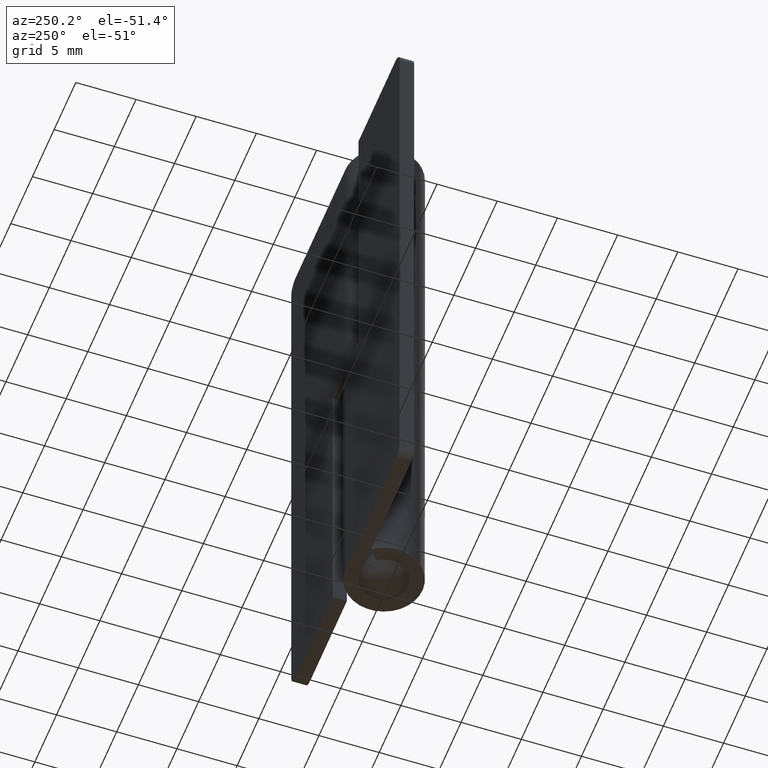
[diagram: clean part render]
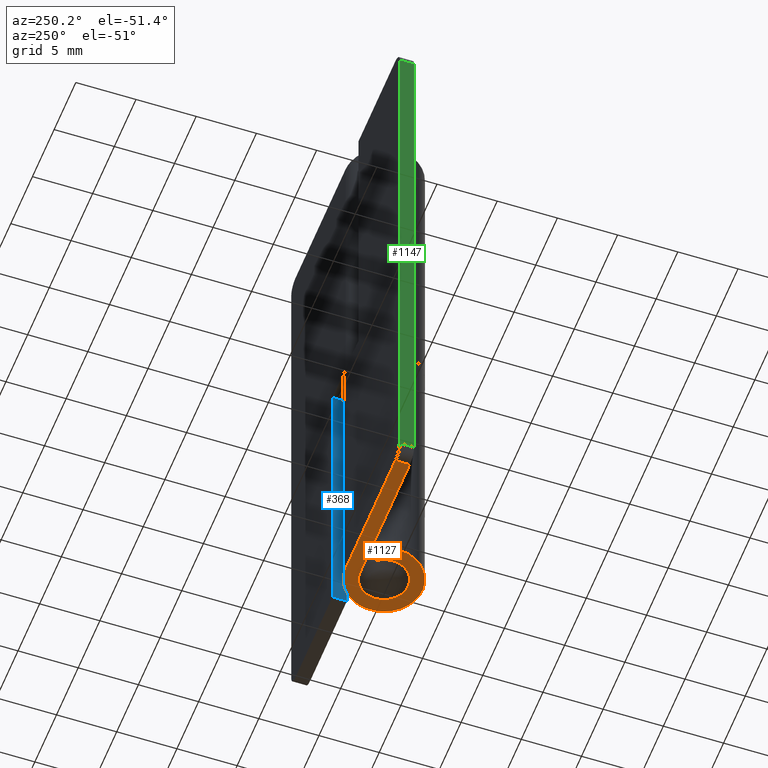
[diagram: same view with three faces highlighted in distinct colors, each labeled with its STEP entity id]
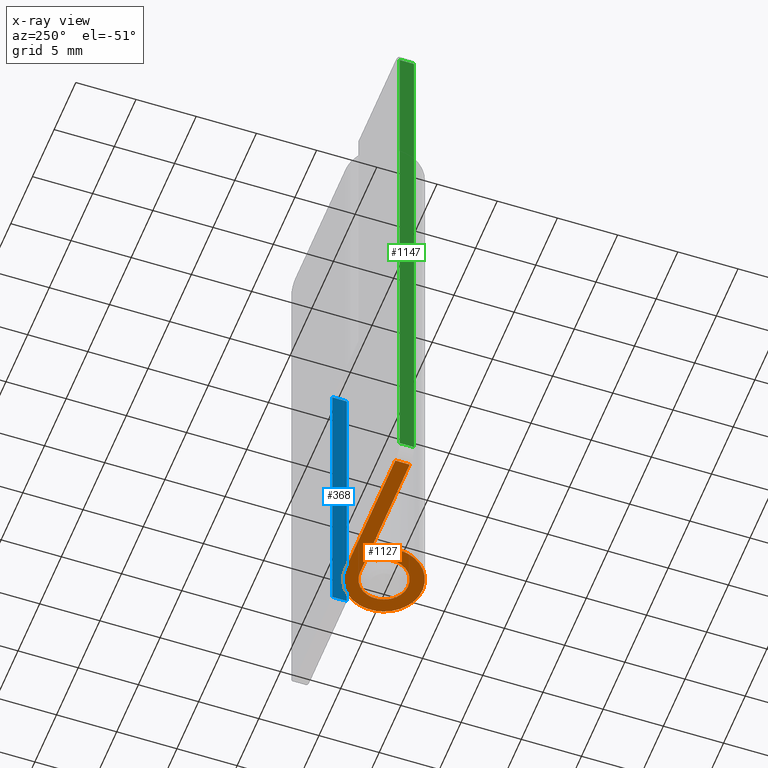
[diagram: x-ray of the same camera — body ghosted, the three highlighted faces saturated]
A machine part, auxiliary view with three faces highlighted in distinct colors.
The next image is the same camera in x-ray (body ghosted, the three faces saturated) — at least one of them is partly hidden behind the body in this view.
Their STEP definitions:

[orange] entity #1127 — the highlighted face is a freeform B-spline surface patch.
#1013=CARTESIAN_POINT('',(-11.500000000000000,2.0,0.0));
#1014=VERTEX_POINT('',#1013);
#1035=CARTESIAN_POINT('',(-11.500000000000000,3.200001000000000,0.0));
#1036=VERTEX_POINT('',#1035);
#1050=CARTESIAN_POINT('',(-11.500000000000000,3.200001000000000,0.0));
#1051=CARTESIAN_POINT('',(-11.500000000000000,2.0,0.0));
#1052=QUASI_UNIFORM_CURVE('',1,(#1050,#1051),.UNSPECIFIED.,.F.,.U.);
#1053=EDGE_CURVE('',#1036,#1014,#1052,.T.);
#1058=CARTESIAN_POINT('',(-12.234140306596320,-3.509200391226918,0.0));
#1059=CARTESIAN_POINT('',(3.931644906678645,-3.509200391226918,0.0));
#1060=CARTESIAN_POINT('',(-12.234140306596320,3.519182653470632,0.0));
#1061=CARTESIAN_POINT('',(3.931644906678645,3.519182653470632,0.0));
#1062=B_SPLINE_SURFACE_WITH_KNOTS('',1,1,((#1058,#1060),(#1059,#1061)),.UNSPECIFIED.,.F.,.F.,.U.,(2,2),(2,2),(0.0,16.165785213274969),(0.0,7.028383044697550),.UNSPECIFIED.);
#1063=CARTESIAN_POINT('',(-3.673819E-016,2.0,0.0));
#1064=VERTEX_POINT('',#1063);
#1065=CARTESIAN_POINT('',(-11.500000000000000,2.0,0.0));
#1066=CARTESIAN_POINT('',(-3.673819E-016,2.0,0.0));
#1067=QUASI_UNIFORM_CURVE('',1,(#1065,#1066),.UNSPECIFIED.,.F.,.U.);
#1068=EDGE_CURVE('',#1014,#1064,#1067,.T.);
#1069=ORIENTED_EDGE('',*,*,#1068,.F.);
#1070=ORIENTED_EDGE('',*,*,#1053,.F.);
#1071=CARTESIAN_POINT('',(-0.000000167551616,3.200000000000000,0.0));
#1072=VERTEX_POINT('',#1071);
#1073=CARTESIAN_POINT('',(-0.000000167551616,3.200000000000000,0.0));
#1074=CARTESIAN_POINT('',(-11.500000000000000,3.200001000000000,0.0));
#1075=QUASI_UNIFORM_CURVE('',1,(#1073,#1074),.UNSPECIFIED.,.F.,.U.);
#1076=EDGE_CURVE('',#1072,#1036,#1075,.T.);
#1077=ORIENTED_EDGE('',*,*,#1076,.F.);
#1078=CARTESIAN_POINT('',(-2.537222891273055,1.950000000000000,0.0));
#1079=VERTEX_POINT('',#1078);
#1080=CARTESIAN_POINT('',(-0.000000167551617,3.199999999999996,0.0));
#1081=CARTESIAN_POINT('',(2.540204880976625,3.200000133004827,0.0));
#1082=CARTESIAN_POINT('',(3.116546783299587,0.726041422719805,0.0));
#1083=CARTESIAN_POINT('',(3.692888685622549,-1.747917287565218,0.0));
#1084=CARTESIAN_POINT('',(1.414213637523662,-2.870539981857437,0.0));
#1085=CARTESIAN_POINT('',(-0.864461410575226,-3.993162676149657,0.0));
#1086=CARTESIAN_POINT('',(-2.474810876647591,-2.028622962708149,0.0));
#1087=CARTESIAN_POINT('',(-4.085160342719955,-0.064083249266642,0.0));
#1088=CARTESIAN_POINT('',(-2.537222891273056,1.949999999999998,0.0));
#1096=(BOUNDED_CURVE()B_SPLINE_CURVE(2,(#1080,#1081,#1082,#1083,#1084,#1085,#1086,#1087,#1088),.UNSPECIFIED.,.F.,.U.)B_SPLINE_CURVE_WITH_KNOTS((3,2,2,2,3),(0.0,0.250000000000000,0.500000000000000,0.750000000000000,1.0),.UNSPECIFIED.)CURVE()GEOMETRIC_REPRESENTATION_ITEM()RATIONAL_B_SPLINE_CURVE((1.0,0.783226625442968,1.0,0.783226625442968,1.0,0.783226625442968,1.0,0.783226625442968,1.0))REPRESENTATION_ITEM(''));
#1097=EDGE_CURVE('',#1072,#1079,#1096,.T.);
#1098=ORIENTED_EDGE('',*,*,#1097,.T.);
#1099=CARTESIAN_POINT('',(-1.585764307045660,1.218750000000000,0.0));
#1100=VERTEX_POINT('',#1099);
#1101=CARTESIAN_POINT('',(-1.585764307045660,1.218750000000000,0.0));
#1102=CARTESIAN_POINT('',(-2.537222891273055,1.950000000000000,0.0));
#1103=QUASI_UNIFORM_CURVE('',1,(#1101,#1102),.UNSPECIFIED.,.F.,.U.);
#1104=EDGE_CURVE('',#1100,#1079,#1103,.T.);
#1105=ORIENTED_EDGE('',*,*,#1104,.F.);
#1106=CARTESIAN_POINT('',(0.0,2.0,0.0));
#1107=CARTESIAN_POINT('',(1.587628133991659,2.000000000000000,0.0));
#1108=CARTESIAN_POINT('',(1.947841757381979,0.453775812708308,0.0));
#1109=CARTESIAN_POINT('',(2.308055380772298,-1.092448374583385,0.0));
#1110=CARTESIAN_POINT('',(0.883883476483185,-1.794087511800915,0.0));
#1111=CARTESIAN_POINT('',(-0.540288427805928,-2.495726649018445,0.0));
#1112=CARTESIAN_POINT('',(-1.546756814501377,-1.267889331445593,0.0));
#1113=CARTESIAN_POINT('',(-2.553225201196827,-0.040052013872740,0.0));
#1114=CARTESIAN_POINT('',(-1.585764307045660,1.218749999999999,0.0));
#1122=(BOUNDED_CURVE()B_SPLINE_CURVE(2,(#1106,#1107,#1108,#1109,#1110,#1111,#1112,#1113,#1114),.UNSPECIFIED.,.F.,.U.)B_SPLINE_CURVE_WITH_KNOTS((3,2,2,2,3),(0.0,0.250000000000000,0.500000000000000,0.750000000000000,1.0),.UNSPECIFIED.)CURVE()GEOMETRIC_REPRESENTATION_ITEM()RATIONAL_B_SPLINE_CURVE((1.0,0.783226629512223,1.0,0.783226629512223,1.0,0.783226629512223,1.0,0.783226629512223,1.0))REPRESENTATION_ITEM(''));
#1123=EDGE_CURVE('',#1064,#1100,#1122,.T.);
#1124=ORIENTED_EDGE('',*,*,#1123,.F.);
#1125=EDGE_LOOP('',(#1069,#1070,#1077,#1098,#1105,#1124));
#1126=FACE_OUTER_BOUND('',#1125,.T.);
#1127=ADVANCED_FACE('',(#1126),#1062,.F.);

[blue] entity #368 — the highlighted face is a freeform B-spline surface patch.
#333=CARTESIAN_POINT('',(3.0,1.940059952375837,26.248749951545150));
#334=CARTESIAN_POINT('',(3.0,1.940059952375837,-1.248750622097403));
#335=CARTESIAN_POINT('',(3.0,3.259941079810654,26.248749951545150));
#336=CARTESIAN_POINT('',(3.0,3.259941079810654,-1.248750622097403));
#337=B_SPLINE_SURFACE_WITH_KNOTS('',1,1,((#333,#335),(#334,#336)),.UNSPECIFIED.,.F.,.F.,.U.,(2,2),(2,2),(0.0,27.497500573642551),(0.041708334948495,0.958291687403247),.UNSPECIFIED.);
#338=CARTESIAN_POINT('',(3.0,2.0,0.0));
#339=VERTEX_POINT('',#338);
#340=CARTESIAN_POINT('',(3.0,2.0,25.0));
#341=VERTEX_POINT('',#340);
#342=CARTESIAN_POINT('',(3.0,2.0,0.0));
#343=CARTESIAN_POINT('',(3.0,2.0,25.0));
#344=QUASI_UNIFORM_CURVE('',1,(#342,#343),.UNSPECIFIED.,.F.,.U.);
#345=EDGE_CURVE('',#339,#341,#344,.T.);
#346=ORIENTED_EDGE('',*,*,#345,.T.);
#347=CARTESIAN_POINT('',(3.0,3.200000999999955,25.0));
#348=VERTEX_POINT('',#347);
#349=CARTESIAN_POINT('',(3.0,3.200000999999955,25.0));
#350=CARTESIAN_POINT('',(3.0,2.0,25.0));
#351=QUASI_UNIFORM_CURVE('',1,(#349,#350),.UNSPECIFIED.,.F.,.U.);
#352=EDGE_CURVE('',#348,#341,#351,.T.);
#353=ORIENTED_EDGE('',*,*,#352,.F.);
#354=CARTESIAN_POINT('',(3.0,3.200000999999955,0.0));
#355=VERTEX_POINT('',#354);
#356=CARTESIAN_POINT('',(3.0,3.200000999999955,0.0));
#357=CARTESIAN_POINT('',(3.0,3.200000999999955,25.0));
#358=QUASI_UNIFORM_CURVE('',1,(#356,#357),.UNSPECIFIED.,.F.,.U.);
#359=EDGE_CURVE('',#355,#348,#358,.T.);
#360=ORIENTED_EDGE('',*,*,#359,.F.);
#361=CARTESIAN_POINT('',(3.0,3.200000999999955,0.0));
#362=CARTESIAN_POINT('',(3.0,2.0,0.0));
#363=QUASI_UNIFORM_CURVE('',1,(#361,#362),.UNSPECIFIED.,.F.,.U.);
#364=EDGE_CURVE('',#355,#339,#363,.T.);
#365=ORIENTED_EDGE('',*,*,#364,.T.);
#366=EDGE_LOOP('',(#346,#353,#360,#365));
#367=FACE_OUTER_BOUND('',#366,.T.);
#368=ADVANCED_FACE('',(#367),#337,.F.);

[green] entity #1147 — the highlighted face is a freeform B-spline surface patch.
#952=CARTESIAN_POINT('',(-12.500000000000000,2.0,49.0));
#953=VERTEX_POINT('',#952);
#974=CARTESIAN_POINT('',(-12.500000000000000,3.200000999999955,49.0));
#975=VERTEX_POINT('',#974);
#989=CARTESIAN_POINT('',(-12.500000000000000,3.200000999999955,49.0));
#990=CARTESIAN_POINT('',(-12.500000000000000,2.0,49.0));
#991=QUASI_UNIFORM_CURVE('',1,(#989,#990),.UNSPECIFIED.,.F.,.U.);
#992=EDGE_CURVE('',#975,#953,#991,.T.);
#1011=CARTESIAN_POINT('',(-12.500000000000000,2.0,1.0));
#1012=VERTEX_POINT('',#1011);
#1028=CARTESIAN_POINT('',(-12.500000000000000,3.200000999999955,1.0));
#1029=VERTEX_POINT('',#1028);
#1030=CARTESIAN_POINT('',(-12.500000000000000,3.200000999999955,1.0));
#1031=CARTESIAN_POINT('',(-12.500000000000000,2.0,1.0));
#1032=QUASI_UNIFORM_CURVE('',1,(#1030,#1031),.UNSPECIFIED.,.F.,.U.);
#1033=EDGE_CURVE('',#1029,#1012,#1032,.T.);
#1128=CARTESIAN_POINT('',(-12.500000000000000,1.940059952375837,-1.397599906966685));
#1129=CARTESIAN_POINT('',(-12.500000000000000,1.940059952375837,51.397601194427011));
#1130=CARTESIAN_POINT('',(-12.500000000000000,3.259941079810654,-1.397599906966685));
#1131=CARTESIAN_POINT('',(-12.500000000000000,3.259941079810654,51.397601194427011));
#1132=B_SPLINE_SURFACE_WITH_KNOTS('',1,1,((#1128,#1130),(#1129,#1131)),.UNSPECIFIED.,.F.,.F.,.U.,(2,2),(2,2),(0.0,52.795201101393687),(0.041708334948495,0.958291687403247),.UNSPECIFIED.);
#1133=ORIENTED_EDGE('',*,*,#992,.F.);
#1134=CARTESIAN_POINT('',(-12.500000000000000,3.200000999999955,1.0));
#1135=CARTESIAN_POINT('',(-12.500000000000000,3.200000999999955,49.0));
#1136=QUASI_UNIFORM_CURVE('',1,(#1134,#1135),.UNSPECIFIED.,.F.,.U.);
#1137=EDGE_CURVE('',#1029,#975,#1136,.T.);
#1138=ORIENTED_EDGE('',*,*,#1137,.F.);
#1139=ORIENTED_EDGE('',*,*,#1033,.T.);
#1140=CARTESIAN_POINT('',(-12.500000000000000,2.0,1.0));
#1141=CARTESIAN_POINT('',(-12.500000000000000,2.0,49.0));
#1142=QUASI_UNIFORM_CURVE('',1,(#1140,#1141),.UNSPECIFIED.,.F.,.U.);
#1143=EDGE_CURVE('',#1012,#953,#1142,.T.);
#1144=ORIENTED_EDGE('',*,*,#1143,.T.);
#1145=EDGE_LOOP('',(#1133,#1138,#1139,#1144));
#1146=FACE_OUTER_BOUND('',#1145,.T.);
#1147=ADVANCED_FACE('',(#1146),#1132,.T.);